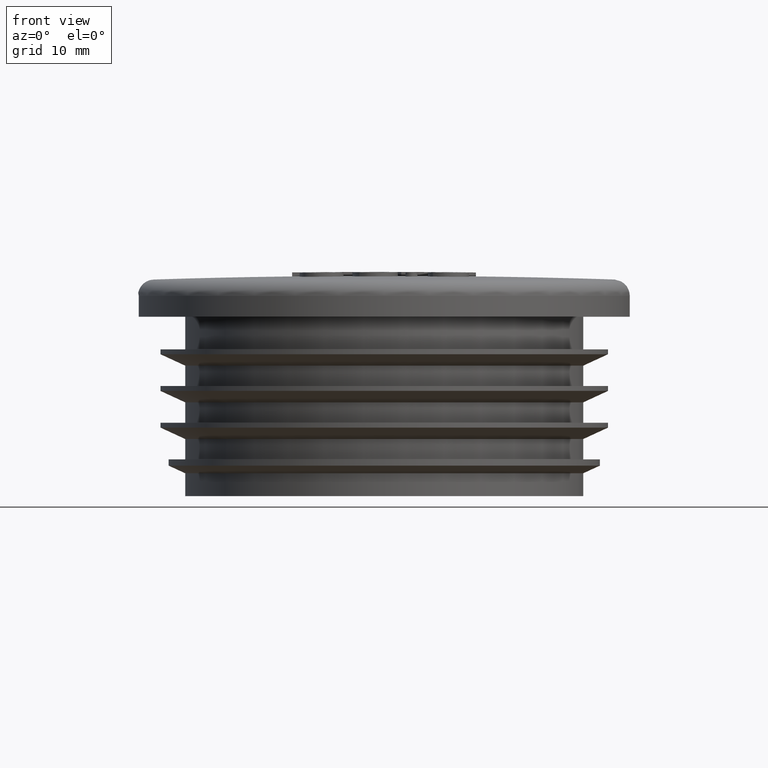
[diagram: clean part render]
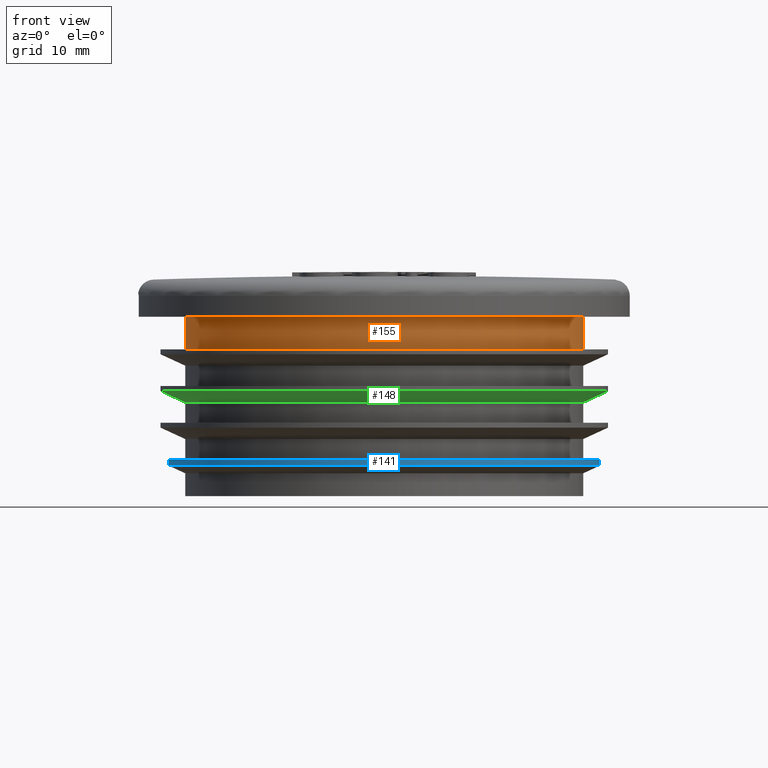
[diagram: same view with three faces highlighted in distinct colors, each labeled with its STEP entity id]
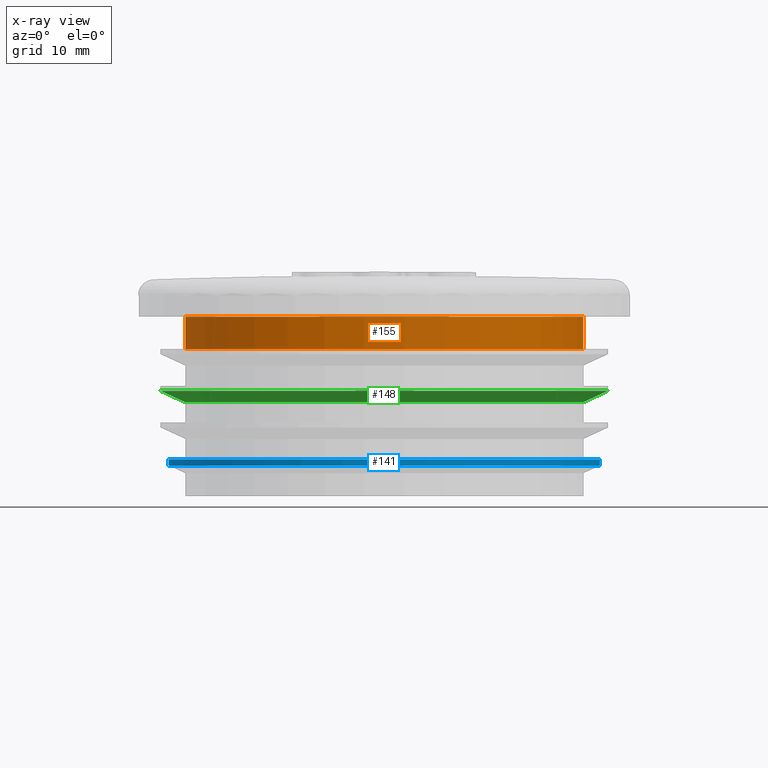
[diagram: x-ray of the same camera — body ghosted, the three highlighted faces saturated]
A machine part, front view with three faces highlighted in distinct colors.
The next image is the same camera in x-ray (body ghosted, the three faces saturated) — at least one of them is partly hidden behind the body in this view.
Their STEP definitions:

[orange] entity #155 — the highlighted cylindrical surface (bore or boss wall) has radius 24.45 mm, axis along (0, 0, 1).
#155 = ADVANCED_FACE( '', ( #354, #355 ), #356, .T. );
#354 = FACE_OUTER_BOUND( '', #845, .T. );
#355 = FACE_OUTER_BOUND( '', #846, .T. );
#356 = CYLINDRICAL_SURFACE( '', #847, 24.4500000000000 );
#845 = EDGE_LOOP( '', ( #1508 ) );
#846 = EDGE_LOOP( '', ( #1509 ) );
#847 = AXIS2_PLACEMENT_3D( '', #1510, #1511, #1512 );
#1508 = ORIENTED_EDGE( '', *, *, #1683, .F. );
#1509 = ORIENTED_EDGE( '', *, *, #1684, .T. );
#1510 = CARTESIAN_POINT( '', ( 0.000000000000000, 0.000000000000000, 22.0000000000000 ) );
#1511 = DIRECTION( '', ( 0.000000000000000, 6.12303176911189E-017, 1.00000000000000 ) );
#1512 = DIRECTION( '', ( 0.000000000000000, 1.00000000000000, -6.12303176911189E-017 ) );
#1683 = EDGE_CURVE( '', #1960, #1960, #1961, .T. );
#1684 = EDGE_CURVE( '', #1962, #1962, #1963, .T. );
#1960 = VERTEX_POINT( '', #3348 );
#1961 = CIRCLE( '', #3349, 24.4500000000000 );
#1962 = VERTEX_POINT( '', #3350 );
#1963 = CIRCLE( '', #3351, 24.4500000000000 );
#3348 = CARTESIAN_POINT( '', ( 0.000000000000000, 24.4500000000000, 18.0000000000000 ) );
#3349 = AXIS2_PLACEMENT_3D( '', #3461, #3462, #3463 );
#3350 = CARTESIAN_POINT( '', ( 0.000000000000000, 24.4500000000000, 22.0000000000000 ) );
#3351 = AXIS2_PLACEMENT_3D( '', #3464, #3465, #3466 );
#3461 = CARTESIAN_POINT( '', ( 0.000000000000000, -2.44921270764476E-016, 18.0000000000000 ) );
#3462 = DIRECTION( '', ( 0.000000000000000, -6.12303176911189E-017, -1.00000000000000 ) );
#3463 = DIRECTION( '', ( 0.000000000000000, 1.00000000000000, -6.12303176911189E-017 ) );
#3464 = CARTESIAN_POINT( '', ( 0.000000000000000, 0.000000000000000, 22.0000000000000 ) );
#3465 = DIRECTION( '', ( 0.000000000000000, -6.12303176911189E-017, -1.00000000000000 ) );
#3466 = DIRECTION( '', ( 0.000000000000000, 1.00000000000000, -6.12303176911189E-017 ) );

[blue] entity #141 — the highlighted cylindrical surface (bore or boss wall) has radius 26.45 mm, axis along (0, 0, 1).
#141 = ADVANCED_FACE( '', ( #312, #313 ), #314, .T. );
#312 = FACE_OUTER_BOUND( '', #803, .T. );
#313 = FACE_OUTER_BOUND( '', #804, .T. );
#314 = CYLINDRICAL_SURFACE( '', #805, 26.4500000000000 );
#803 = EDGE_LOOP( '', ( #1438 ) );
#804 = EDGE_LOOP( '', ( #1439 ) );
#805 = AXIS2_PLACEMENT_3D( '', #1440, #1441, #1442 );
#1438 = ORIENTED_EDGE( '', *, *, #1669, .F. );
#1439 = ORIENTED_EDGE( '', *, *, #1670, .T. );
#1440 = CARTESIAN_POINT( '', ( 0.000000000000000, 0.000000000000000, 22.0000000000000 ) );
#1441 = DIRECTION( '', ( 0.000000000000000, 6.12303176911189E-017, 1.00000000000000 ) );
#1442 = DIRECTION( '', ( 0.000000000000000, 1.00000000000000, -6.12303176911189E-017 ) );
#1669 = EDGE_CURVE( '', #1932, #1932, #1933, .T. );
#1670 = EDGE_CURVE( '', #1934, #1934, #1935, .T. );
#1932 = VERTEX_POINT( '', #3320 );
#1933 = CIRCLE( '', #3321, 26.4500000000000 );
#1934 = VERTEX_POINT( '', #3322 );
#1935 = CIRCLE( '', #3323, 26.4500000000000 );
#3320 = CARTESIAN_POINT( '', ( 0.000000000000000, 26.4500000000000, 3.73261531630998 ) );
#3321 = AXIS2_PLACEMENT_3D( '', #3419, #3420, #3421 );
#3322 = CARTESIAN_POINT( '', ( 0.000000000000000, 26.4500000000000, 4.50000000000000 ) );
#3323 = AXIS2_PLACEMENT_3D( '', #3422, #3423, #3424 );
#3419 = CARTESIAN_POINT( '', ( 0.000000000000000, -1.11851776756822E-015, 3.73261531630999 ) );
#3420 = DIRECTION( '', ( 0.000000000000000, -6.12303176911189E-017, -1.00000000000000 ) );
#3421 = DIRECTION( '', ( 0.000000000000000, 1.00000000000000, -6.12303176911189E-017 ) );
#3422 = CARTESIAN_POINT( '', ( 0.000000000000000, -1.07153055959458E-015, 4.50000000000000 ) );
#3423 = DIRECTION( '', ( 0.000000000000000, -6.12303176911189E-017, -1.00000000000000 ) );
#3424 = DIRECTION( '', ( 0.000000000000000, 1.00000000000000, -6.12303176911189E-017 ) );

[green] entity #148 — the highlighted conical surface has half-angle 65 deg.
#148 = ADVANCED_FACE( '', ( #333, #334 ), #335, .T. );
#333 = FACE_BOUND( '', #824, .T. );
#334 = FACE_OUTER_BOUND( '', #825, .T. );
#335 = CONICAL_SURFACE( '', #826, 27.4500000000000, 1.13446401379631 );
#824 = EDGE_LOOP( '', ( #1473 ) );
#825 = EDGE_LOOP( '', ( #1474 ) );
#826 = AXIS2_PLACEMENT_3D( '', #1475, #1476, #1477 );
#1473 = ORIENTED_EDGE( '', *, *, #1676, .F. );
#1474 = ORIENTED_EDGE( '', *, *, #1677, .T. );
#1475 = CARTESIAN_POINT( '', ( 0.000000000000000, -5.57261837604851E-016, 12.8989229744650 ) );
#1476 = DIRECTION( '', ( 0.000000000000000, 6.12303176911189E-017, 1.00000000000000 ) );
#1477 = DIRECTION( '', ( 0.000000000000000, -1.00000000000000, 6.12303176911189E-017 ) );
#1676 = EDGE_CURVE( '', #1946, #1946, #1947, .T. );
#1677 = EDGE_CURVE( '', #1948, #1948, #1949, .T. );
#1946 = VERTEX_POINT( '', #3334 );
#1947 = CIRCLE( '', #3335, 24.4500000000000 );
#1948 = VERTEX_POINT( '', #3336 );
#1949 = CIRCLE( '', #3337, 27.4500000000000 );
#3334 = CARTESIAN_POINT( '', ( 0.000000000000000, 24.4500000000000, 11.5000000000000 ) );
#3335 = AXIS2_PLACEMENT_3D( '', #3440, #3441, #3442 );
#3336 = CARTESIAN_POINT( '', ( 0.000000000000000, 27.4500000000000, 12.8989229744650 ) );
#3337 = AXIS2_PLACEMENT_3D( '', #3443, #3444, #3445 );
#3440 = CARTESIAN_POINT( '', ( 0.000000000000000, -6.42918335756748E-016, 11.5000000000000 ) );
#3441 = DIRECTION( '', ( 0.000000000000000, -6.12303176911189E-017, -1.00000000000000 ) );
#3442 = DIRECTION( '', ( 0.000000000000000, 1.00000000000000, -6.12303176911189E-017 ) );
#3443 = CARTESIAN_POINT( '', ( 0.000000000000000, -5.57261837604851E-016, 12.8989229744650 ) );
#3444 = DIRECTION( '', ( 0.000000000000000, -6.12303176911189E-017, -1.00000000000000 ) );
#3445 = DIRECTION( '', ( 0.000000000000000, 1.00000000000000, -6.12303176911189E-017 ) );